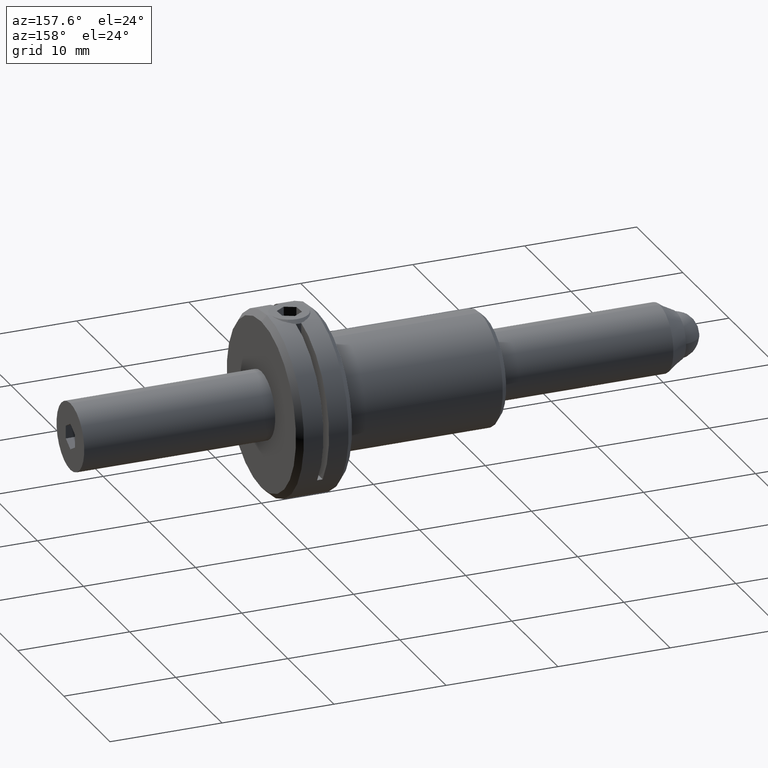
[diagram: clean part render]
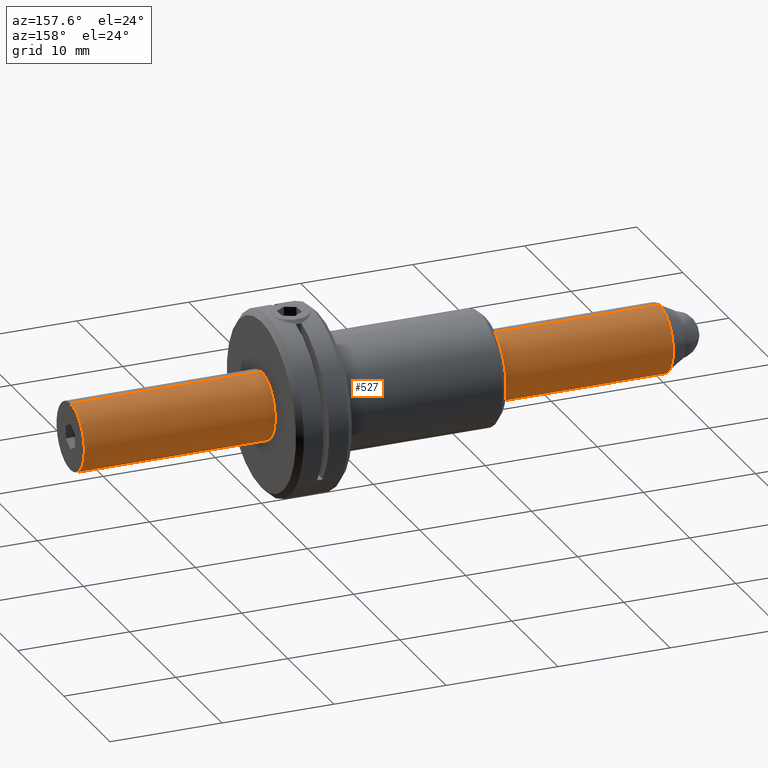
[diagram: same view with one face highlighted and labeled with its STEP entity id]
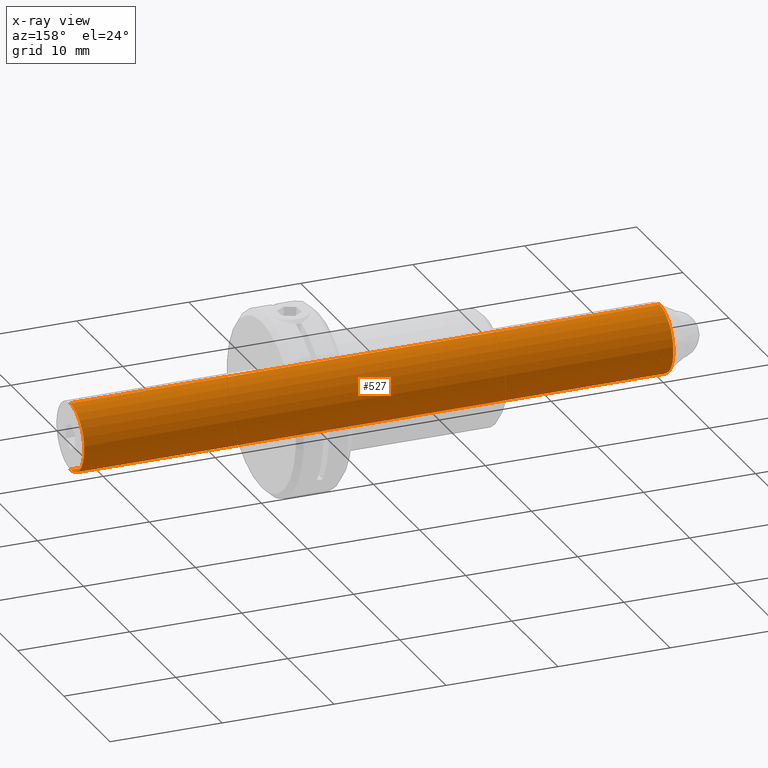
[diagram: x-ray of the same camera — body ghosted, the highlighted face saturated]
A machine part, auxiliary view. The second image highlights one B-rep face of the part: STEP entity #527.
The next image is the same camera in x-ray: the body ghosted, the highlighted face saturated — about 0% of this face is hidden behind the body in this view.
In plain terms, the highlighted cylindrical surface (edge-blend (fillet) strip) has radius 3 mm, axis along (-1, -0, -0).
Its self-contained STEP definition (entity closure, byte-faithful):
#44 = ORIENTED_EDGE ( 'NONE', *, *, #66, .T. ) ;
#66 = EDGE_CURVE ( 'NONE', #879, #231, #1845, .T. ) ;
#142 = CARTESIAN_POINT ( 'NONE',  ( 27.05000000000000426, 0.000000000000000000, 0.000000000000000000 ) ) ;
#217 = LINE ( 'NONE', #1395, #1041 ) ;
#231 = VERTEX_POINT ( 'NONE', #1739 ) ;
#243 = DIRECTION ( 'NONE',  ( -1.000000000000000000, -0.000000000000000000, -0.000000000000000000 ) ) ;
#250 = ORIENTED_EDGE ( 'NONE', *, *, #1316, .T. ) ;
#385 = ORIENTED_EDGE ( 'NONE', *, *, #939, .F. ) ;
#527 = ADVANCED_FACE ( 'NONE', ( #1588 ), #1892, .T. ) ;
#735 = DIRECTION ( 'NONE',  ( -1.000000000000000000, -0.000000000000000000, -0.000000000000000000 ) ) ;
#775 = VERTEX_POINT ( 'NONE', #1699 ) ;
#805 = EDGE_CURVE ( 'NONE', #775, #1862, #217, .T. ) ;
#839 = CARTESIAN_POINT ( 'NONE',  ( -25.55000000000000071, 0.000000000000000000, 0.000000000000000000 ) ) ;
#879 = VERTEX_POINT ( 'NONE', #1149 ) ;
#892 = ORIENTED_EDGE ( 'NONE', *, *, #805, .F. ) ;
#939 = EDGE_CURVE ( 'NONE', #1862, #231, #1417, .T. ) ;
#991 = DIRECTION ( 'NONE',  ( -1.000000000000000000, -0.000000000000000000, -0.000000000000000000 ) ) ;
#1041 = VECTOR ( 'NONE', #1850, 1000.000000000000000 ) ;
#1044 = AXIS2_PLACEMENT_3D ( 'NONE', #839, #243, #1425 ) ;
#1149 = CARTESIAN_POINT ( 'NONE',  ( 27.05000000000000426, 3.673940397442059868E-16, -3.000000000000000000 ) ) ;
#1177 = EDGE_LOOP ( 'NONE', ( #250, #44, #385, #892 ) ) ;
#1316 = EDGE_CURVE ( 'NONE', #775, #879, #1844, .T. ) ;
#1322 = DIRECTION ( 'NONE',  ( 0.000000000000000000, 0.000000000000000000, 1.000000000000000000 ) ) ;
#1385 = AXIS2_PLACEMENT_3D ( 'NONE', #1610, #1884, #1456 ) ;
#1395 = CARTESIAN_POINT ( 'NONE',  ( -45.53911735205616651, 0.000000000000000000, 3.000000000000000000 ) ) ;
#1417 = CIRCLE ( 'NONE', #1044, 3.000000000000000000 ) ;
#1425 = DIRECTION ( 'NONE',  ( 0.000000000000000000, 0.000000000000000000, 1.000000000000000000 ) ) ;
#1456 = DIRECTION ( 'NONE',  ( 0.000000000000000000, 0.000000000000000000, 1.000000000000000000 ) ) ;
#1545 = CARTESIAN_POINT ( 'NONE',  ( -45.53911735205616651, 3.673940397442059868E-16, -3.000000000000000000 ) ) ;
#1563 = AXIS2_PLACEMENT_3D ( 'NONE', #142, #735, #1322 ) ;
#1588 = FACE_OUTER_BOUND ( 'NONE', #1177, .T. ) ;
#1610 = CARTESIAN_POINT ( 'NONE',  ( -45.53911735205616651, 0.000000000000000000, 0.000000000000000000 ) ) ;
#1684 = CARTESIAN_POINT ( 'NONE',  ( -25.55000000000000071, 3.673940397442059868E-16, 3.000000000000000000 ) ) ;
#1699 = CARTESIAN_POINT ( 'NONE',  ( 27.05000000000000426, 0.000000000000000000, 3.000000000000000000 ) ) ;
#1739 = CARTESIAN_POINT ( 'NONE',  ( -25.55000000000000071, 0.000000000000000000, -3.000000000000000000 ) ) ;
#1844 = CIRCLE ( 'NONE', #1563, 3.000000000000000000 ) ;
#1845 = LINE ( 'NONE', #1545, #1897 ) ;
#1850 = DIRECTION ( 'NONE',  ( -1.000000000000000000, -0.000000000000000000, -0.000000000000000000 ) ) ;
#1862 = VERTEX_POINT ( 'NONE', #1684 ) ;
#1884 = DIRECTION ( 'NONE',  ( -1.000000000000000000, -0.000000000000000000, -0.000000000000000000 ) ) ;
#1892 = CYLINDRICAL_SURFACE ( 'NONE', #1385, 3.000000000000000000 ) ;
#1897 = VECTOR ( 'NONE', #991, 1000.000000000000000 ) ;